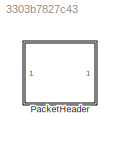
MODEL slx_3303b7827c43
KIND library
CONFIG AbsTol = auto
CONFIG EnableMultiTasking = off
CONFIG FixedStep = auto
CONFIG MaxStep = auto
CONFIG MinStep = auto
CONFIG RelTol = 1e-3
CONFIG SampleTimeConstraint = Unconstrained
CONFIG Solver = VariableStepAuto
CONFIG SolverName = VariableStepAuto
CONFIG StartTime = 0.0
CONFIG StopTime = 10.0
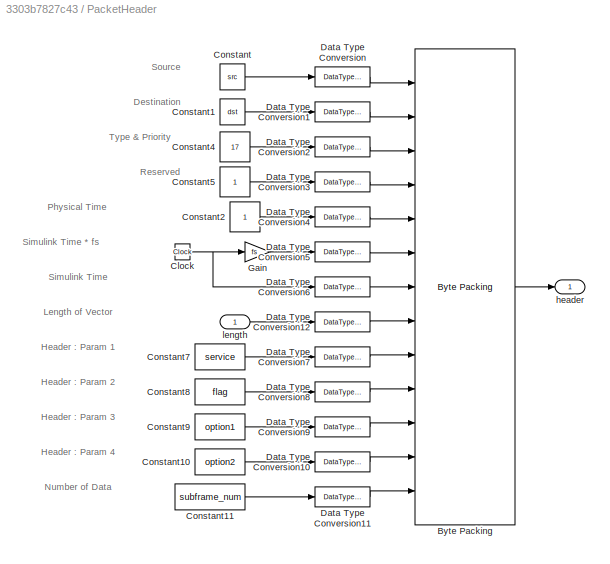
BLOCK [SubSystem] PacketHeader
  Ports = [1, 1]
  RequestExecContextInheritance = off
BLOCK [Reference] PacketHeader/Byte Packing   REF=xpcutilitieslib/Byte Packing 
  Ports = [13, 1]
  SourceBlock = xpcutilitieslib/Byte Packing
  SourceProductBaseCode = XP
  SourceType = xpcbytepacking
BLOCK [Clock] PacketHeader/Clock
BLOCK [Constant] PacketHeader/Constant
  Value = src
BLOCK [Constant] PacketHeader/Constant1
  Value = dst
BLOCK [Constant] PacketHeader/Constant10
  Value = option2
BLOCK [Constant] PacketHeader/Constant11
  Value = subframe_num
BLOCK [Constant] PacketHeader/Constant2
BLOCK [Constant] PacketHeader/Constant4
  Value = 17
BLOCK [Constant] PacketHeader/Constant5
BLOCK [Constant] PacketHeader/Constant7
  Value = service
BLOCK [Constant] PacketHeader/Constant8
  Value = flag
BLOCK [Constant] PacketHeader/Constant9
  Value = option1
BLOCK [DataTypeConversion] PacketHeader/Data Type Conversion
  OutDataTypeStr = uint8
  RndMeth = Floor
  SaturateOnIntegerOverflow = off
BLOCK [DataTypeConversion] PacketHeader/Data Type Conversion1
  OutDataTypeStr = uint8
  RndMeth = Floor
  SaturateOnIntegerOverflow = off
BLOCK [DataTypeConversion] PacketHeader/Data Type Conversion10
  OutDataTypeStr = uint8
  RndMeth = Floor
  SaturateOnIntegerOverflow = off
BLOCK [DataTypeConversion] PacketHeader/Data Type Conversion11
  OutDataTypeStr = uint16
  RndMeth = Floor
  SaturateOnIntegerOverflow = off
BLOCK [DataTypeConversion] PacketHeader/Data Type Conversion12
  OutDataTypeStr = uint16
  RndMeth = Floor
  SaturateOnIntegerOverflow = off
BLOCK [DataTypeConversion] PacketHeader/Data Type Conversion2
  OutDataTypeStr = uint8
  RndMeth = Floor
  SaturateOnIntegerOverflow = off
BLOCK [DataTypeConversion] PacketHeader/Data Type Conversion3
  OutDataTypeStr = uint8
  RndMeth = Floor
  SaturateOnIntegerOverflow = off
BLOCK [DataTypeConversion] PacketHeader/Data Type Conversion4
  OutDataTypeStr = uint32
  RndMeth = Floor
  SaturateOnIntegerOverflow = off
BLOCK [DataTypeConversion] PacketHeader/Data Type Conversion5
  OutDataTypeStr = uint32
  RndMeth = Floor
  SaturateOnIntegerOverflow = off
BLOCK [DataTypeConversion] PacketHeader/Data Type Conversion6
  OutDataTypeStr = uint16
  RndMeth = Floor
  SaturateOnIntegerOverflow = off
BLOCK [DataTypeConversion] PacketHeader/Data Type Conversion7
  OutDataTypeStr = uint8
  RndMeth = Floor
  SaturateOnIntegerOverflow = off
BLOCK [DataTypeConversion] PacketHeader/Data Type Conversion8
  OutDataTypeStr = uint8
  RndMeth = Floor
  SaturateOnIntegerOverflow = off
BLOCK [DataTypeConversion] PacketHeader/Data Type Conversion9
  OutDataTypeStr = uint8
  RndMeth = Floor
  SaturateOnIntegerOverflow = off
BLOCK [Gain] PacketHeader/Gain
  Gain = fs
BLOCK [Outport] PacketHeader/header
BLOCK [Inport] PacketHeader/length
ANNOTATION PacketHeader: Destination
ANNOTATION PacketHeader: Header : Param 1
ANNOTATION PacketHeader: Header : Param 2
ANNOTATION PacketHeader: Header : Param 3
ANNOTATION PacketHeader: Header : Param 4
ANNOTATION PacketHeader: Length of Vector
ANNOTATION PacketHeader: Number of Data
ANNOTATION PacketHeader: Physical Time
ANNOTATION PacketHeader: Reserved
ANNOTATION PacketHeader: Simulink Time
ANNOTATION PacketHeader: Simulink Time * fs
ANNOTATION PacketHeader: Source
ANNOTATION PacketHeader: Type & Priority
LINE PacketHeader/Byte Packing :1 -> PacketHeader/header:1
NET PacketHeader/Clock:1 -> PacketHeader/Data Type Conversion6:1, PacketHeader/Gain:1
LINE PacketHeader/Constant10:1 -> PacketHeader/Data Type Conversion10:1
LINE PacketHeader/Constant11:1 -> PacketHeader/Data Type Conversion11:1
LINE PacketHeader/Constant1:1 -> PacketHeader/Data Type Conversion1:1
LINE PacketHeader/Constant2:1 -> PacketHeader/Data Type Conversion4:1
LINE PacketHeader/Constant4:1 -> PacketHeader/Data Type Conversion2:1
LINE PacketHeader/Constant5:1 -> PacketHeader/Data Type Conversion3:1
LINE PacketHeader/Constant7:1 -> PacketHeader/Data Type Conversion7:1
LINE PacketHeader/Constant8:1 -> PacketHeader/Data Type Conversion8:1
LINE PacketHeader/Constant9:1 -> PacketHeader/Data Type Conversion9:1
LINE PacketHeader/Constant:1 -> PacketHeader/Data Type Conversion:1
LINE PacketHeader/Data Type Conversion10:1 -> PacketHeader/Byte Packing :12
LINE PacketHeader/Data Type Conversion11:1 -> PacketHeader/Byte Packing :13
LINE PacketHeader/Data Type Conversion12:1 -> PacketHeader/Byte Packing :8
LINE PacketHeader/Data Type Conversion1:1 -> PacketHeader/Byte Packing :2
LINE PacketHeader/Data Type Conversion2:1 -> PacketHeader/Byte Packing :3
LINE PacketHeader/Data Type Conversion3:1 -> PacketHeader/Byte Packing :4
LINE PacketHeader/Data Type Conversion4:1 -> PacketHeader/Byte Packing :5
LINE PacketHeader/Data Type Conversion5:1 -> PacketHeader/Byte Packing :6
LINE PacketHeader/Data Type Conversion6:1 -> PacketHeader/Byte Packing :7
LINE PacketHeader/Data Type Conversion7:1 -> PacketHeader/Byte Packing :9
LINE PacketHeader/Data Type Conversion8:1 -> PacketHeader/Byte Packing :10
LINE PacketHeader/Data Type Conversion9:1 -> PacketHeader/Byte Packing :11
LINE PacketHeader/Data Type Conversion:1 -> PacketHeader/Byte Packing :1
LINE PacketHeader/Gain:1 -> PacketHeader/Data Type Conversion5:1
LINE PacketHeader/length:1 -> PacketHeader/Data Type Conversion12:1
note: NET lines group one-source signal fan-out (src -> all destinations, sorted); 1:1 wires keep LINE
